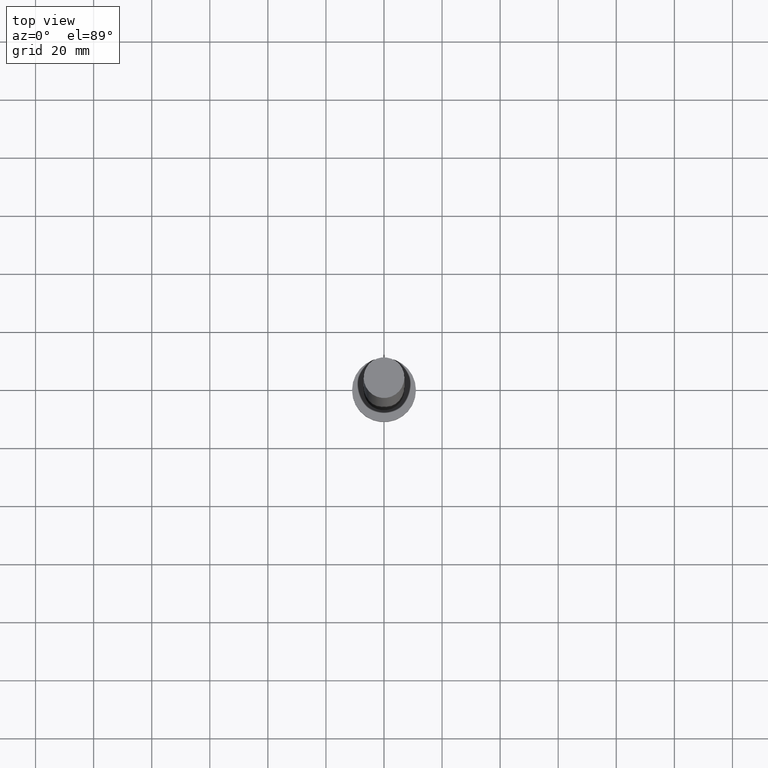
[diagram: clean part render]
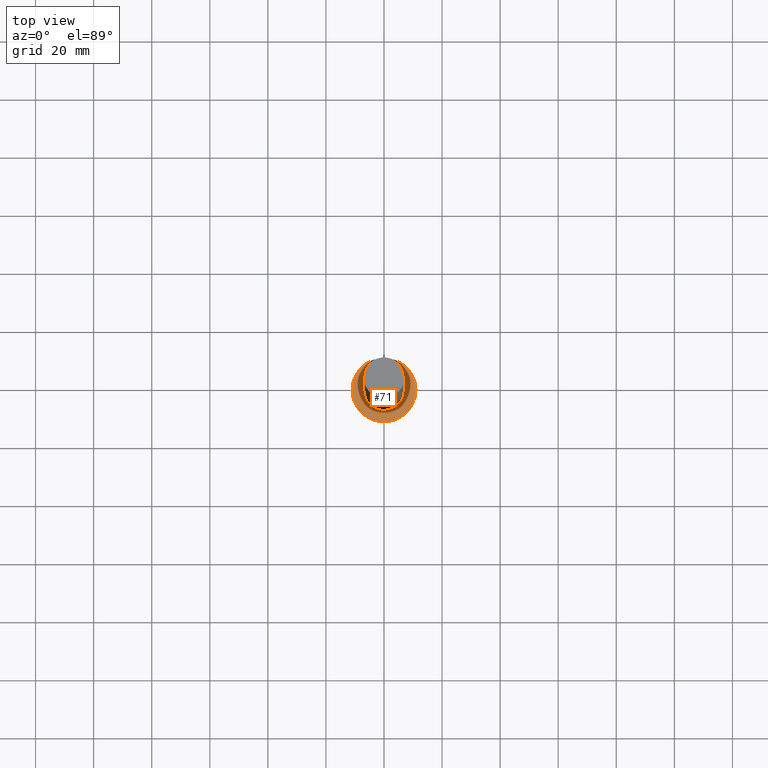
[diagram: same view with one face highlighted and labeled with its STEP entity id]
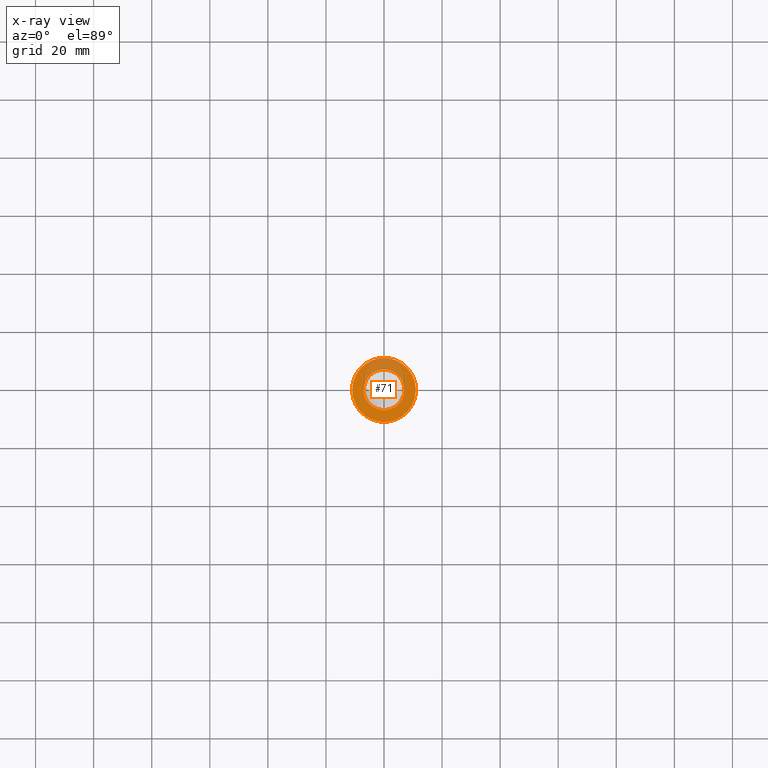
[diagram: x-ray of the same camera — body ghosted, the highlighted face saturated]
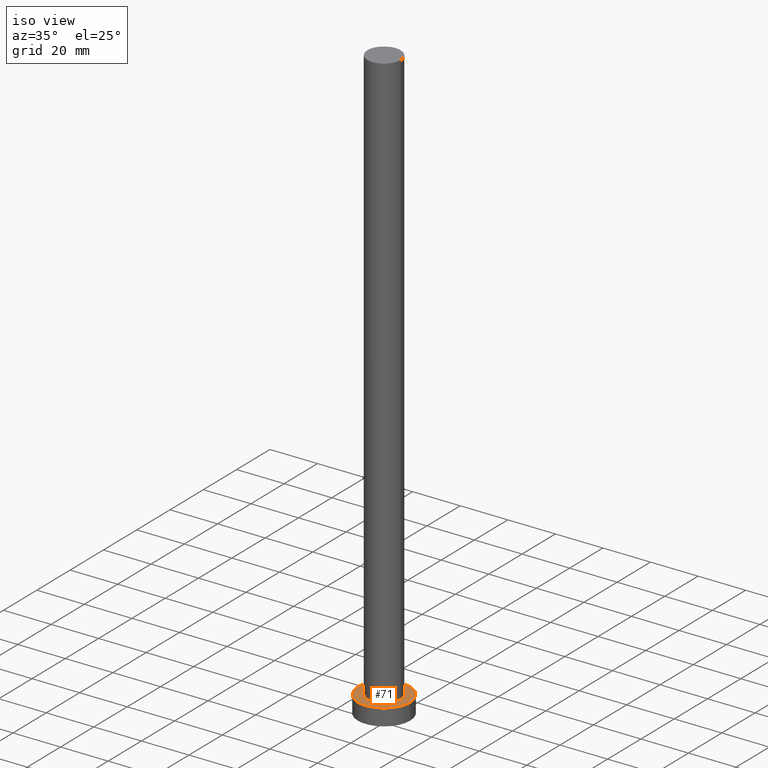
[diagram: same view with one face highlighted and labeled with its STEP entity id]
A machine part, top view. The second image highlights one B-rep face of the part: STEP entity #71.
The next image is the same camera in x-ray: the body ghosted, the highlighted face saturated — about 26% of this face is hidden behind the body in this view.
A second angle (iso view) of the same face is appended — the face is thin or edge-on in the first view.
In plain terms, the highlighted planar face has unit normal (0, 0, 1).
Its self-contained STEP definition (entity closure, byte-faithful):
#8 = CARTESIAN_POINT ( 'NONE',  ( -7.000000000000000888, 0.000000000000000000, 7.000000000000000000 ) ) ;
#12 = CIRCLE ( 'NONE', #214, 7.000000000000000888 ) ;
#15 = DIRECTION ( 'NONE',  ( 0.000000000000000000, 0.000000000000000000, 1.000000000000000000 ) ) ;
#18 = EDGE_LOOP ( 'NONE', ( #105, #32 ) ) ;
#20 = FACE_OUTER_BOUND ( 'NONE', #124, .T. ) ;
#23 = AXIS2_PLACEMENT_3D ( 'NONE', #229, #113, #155 ) ;
#29 = VERTEX_POINT ( 'NONE', #150 ) ;
#32 = ORIENTED_EDGE ( 'NONE', *, *, #116, .F. ) ;
#33 = ORIENTED_EDGE ( 'NONE', *, *, #220, .T. ) ;
#35 = DIRECTION ( 'NONE',  ( 0.000000000000000000, 0.000000000000000000, 1.000000000000000000 ) ) ;
#40 = CIRCLE ( 'NONE', #57, 7.000000000000000888 ) ;
#49 = AXIS2_PLACEMENT_3D ( 'NONE', #222, #35, #110 ) ;
#51 = CARTESIAN_POINT ( 'NONE',  ( 0.000000000000000000, 0.000000000000000000, 7.000000000000000000 ) ) ;
#53 = DIRECTION ( 'NONE',  ( 1.000000000000000000, 0.000000000000000000, 0.000000000000000000 ) ) ;
#57 = AXIS2_PLACEMENT_3D ( 'NONE', #191, #15, #76 ) ;
#64 = CARTESIAN_POINT ( 'NONE',  ( 7.000000000000000888, 8.572527594031474176E-16, 7.000000000000000000 ) ) ;
#70 = CIRCLE ( 'NONE', #23, 11.00000000000000000 ) ;
#71 = ADVANCED_FACE ( 'NONE', ( #103, #20 ), #131, .T. ) ;
#73 = DIRECTION ( 'NONE',  ( 0.000000000000000000, 0.000000000000000000, 1.000000000000000000 ) ) ;
#76 = DIRECTION ( 'NONE',  ( 1.000000000000000000, 0.000000000000000000, 0.000000000000000000 ) ) ;
#82 = EDGE_CURVE ( 'NONE', #169, #171, #12, .T. ) ;
#89 = DIRECTION ( 'NONE',  ( 1.000000000000000000, 0.000000000000000000, 0.000000000000000000 ) ) ;
#103 = FACE_BOUND ( 'NONE', #18, .T. ) ;
#105 = ORIENTED_EDGE ( 'NONE', *, *, #82, .F. ) ;
#107 = ORIENTED_EDGE ( 'NONE', *, *, #141, .T. ) ;
#109 = VERTEX_POINT ( 'NONE', #231 ) ;
#110 = DIRECTION ( 'NONE',  ( 1.000000000000000000, 0.000000000000000000, -0.000000000000000000 ) ) ;
#113 = DIRECTION ( 'NONE',  ( 0.000000000000000000, 0.000000000000000000, 1.000000000000000000 ) ) ;
#116 = EDGE_CURVE ( 'NONE', #171, #169, #40, .T. ) ;
#124 = EDGE_LOOP ( 'NONE', ( #33, #107 ) ) ;
#131 = PLANE ( 'NONE',  #49 ) ;
#141 = EDGE_CURVE ( 'NONE', #109, #29, #70, .T. ) ;
#150 = CARTESIAN_POINT ( 'NONE',  ( -11.00000000000000000, 0.000000000000000000, 7.000000000000000000 ) ) ;
#153 = CARTESIAN_POINT ( 'NONE',  ( 0.000000000000000000, 0.000000000000000000, 7.000000000000000000 ) ) ;
#155 = DIRECTION ( 'NONE',  ( 1.000000000000000000, 0.000000000000000000, 0.000000000000000000 ) ) ;
#169 = VERTEX_POINT ( 'NONE', #8 ) ;
#171 = VERTEX_POINT ( 'NONE', #64 ) ;
#173 = AXIS2_PLACEMENT_3D ( 'NONE', #51, #246, #89 ) ;
#191 = CARTESIAN_POINT ( 'NONE',  ( 0.000000000000000000, 0.000000000000000000, 7.000000000000000000 ) ) ;
#200 = CIRCLE ( 'NONE', #173, 11.00000000000000000 ) ;
#214 = AXIS2_PLACEMENT_3D ( 'NONE', #153, #73, #53 ) ;
#220 = EDGE_CURVE ( 'NONE', #29, #109, #200, .T. ) ;
#222 = CARTESIAN_POINT ( 'NONE',  ( 0.000000000000000000, 0.000000000000000000, 7.000000000000000000 ) ) ;
#229 = CARTESIAN_POINT ( 'NONE',  ( 0.000000000000000000, 0.000000000000000000, 7.000000000000000000 ) ) ;
#231 = CARTESIAN_POINT ( 'NONE',  ( 11.00000000000000000, 1.347111479062088405E-15, 7.000000000000000000 ) ) ;
#246 = DIRECTION ( 'NONE',  ( 0.000000000000000000, 0.000000000000000000, 1.000000000000000000 ) ) ;